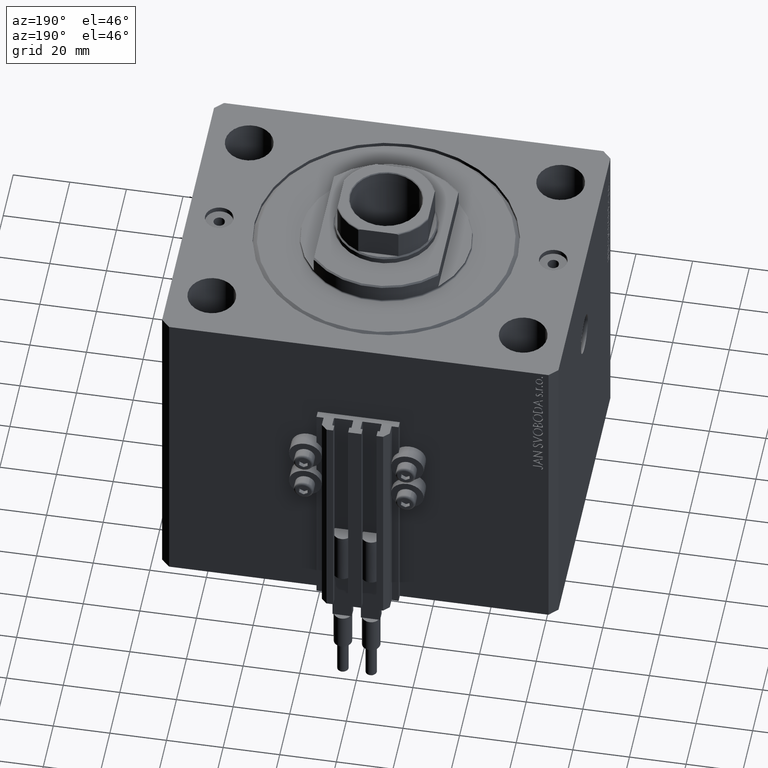
[diagram: clean part render]
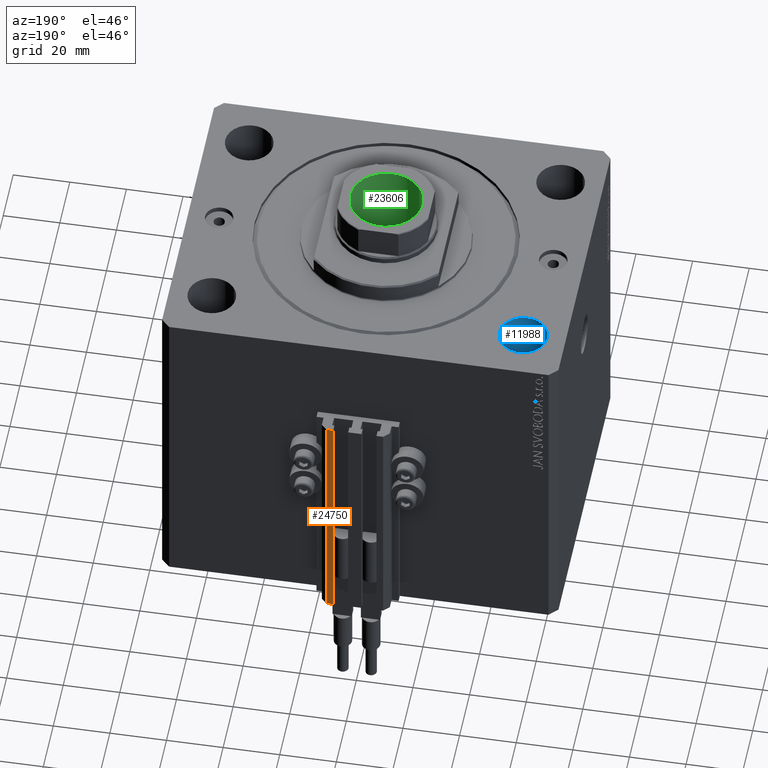
[diagram: same view with three faces highlighted in distinct colors, each labeled with its STEP entity id]
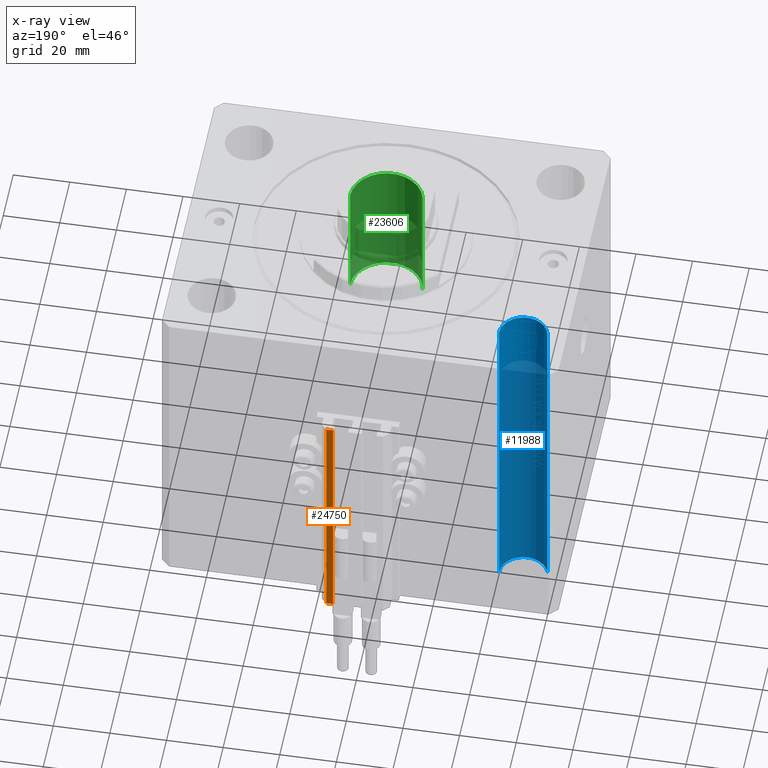
[diagram: x-ray of the same camera — body ghosted, the three highlighted faces saturated]
A machine part, auxiliary view with three faces highlighted in distinct colors.
The next image is the same camera in x-ray (body ghosted, the three faces saturated) — at least one of them is partly hidden behind the body in this view.
Their STEP definitions:

[orange] entity #24750 — the highlighted planar face has unit normal (0, 1, 0).
#622 = DIRECTION ( 'NONE',  ( -1.000000000000000000, 0.000000000000000000, 0.000000000000000000 ) ) ;
#1808 = DIRECTION ( 'NONE',  ( -1.000000000000000000, 0.000000000000000000, 0.000000000000000000 ) ) ;
#4230 = CARTESIAN_POINT ( 'NONE',  ( 7.649999999999998579, 63.00000000000002842, -120.0000000000000000 ) ) ;
#4419 = VERTEX_POINT ( 'NONE', #28476 ) ;
#4926 = VERTEX_POINT ( 'NONE', #4230 ) ;
#12050 = LINE ( 'NONE', #22234, #35100 ) ;
#14161 = ORIENTED_EDGE ( 'NONE', *, *, #45867, .F. ) ;
#15630 = EDGE_LOOP ( 'NONE', ( #29269, #14161, #30945, #40360 ) ) ;
#15709 = DIRECTION ( 'NONE',  ( 0.000000000000000000, 0.000000000000000000, 1.000000000000000000 ) ) ;
#16856 = LINE ( 'NONE', #27293, #19813 ) ;
#17538 = DIRECTION ( 'NONE',  ( 0.000000000000000000, 0.000000000000000000, 1.000000000000000000 ) ) ;
#17616 = LINE ( 'NONE', #47946, #29604 ) ;
#19654 = EDGE_CURVE ( 'NONE', #4419, #43121, #12050, .T. ) ;
#19813 = VECTOR ( 'NONE', #1808, 1000.000000000000000 ) ;
#22234 = CARTESIAN_POINT ( 'NONE',  ( 9.999999999999998224, 63.00000000000002842, -33.00000000000000000 ) ) ;
#24750 = ADVANCED_FACE ( 'NONE', ( #34158 ), #30032, .T. ) ;
#25761 = LINE ( 'NONE', #35738, #46481 ) ;
#27293 = CARTESIAN_POINT ( 'NONE',  ( 9.999999999999998224, 63.00000000000002842, -120.0000000000000000 ) ) ;
#28344 = EDGE_CURVE ( 'NONE', #37308, #4926, #16856, .T. ) ;
#28476 = CARTESIAN_POINT ( 'NONE',  ( 9.999999999999998224, 63.00000000000002842, -33.00000000000000000 ) ) ;
#29269 = ORIENTED_EDGE ( 'NONE', *, *, #19654, .F. ) ;
#29604 = VECTOR ( 'NONE', #36063, 1000.000000000000000 ) ;
#30032 = PLANE ( 'NONE',  #38320 ) ;
#30273 = DIRECTION ( 'NONE',  ( 0.000000000000000000, 1.000000000000000000, -0.000000000000000000 ) ) ;
#30945 = ORIENTED_EDGE ( 'NONE', *, *, #28344, .T. ) ;
#31736 = EDGE_CURVE ( 'NONE', #4926, #43121, #25761, .T. ) ;
#34158 = FACE_OUTER_BOUND ( 'NONE', #15630, .T. ) ;
#35100 = VECTOR ( 'NONE', #622, 1000.000000000000000 ) ;
#35738 = CARTESIAN_POINT ( 'NONE',  ( 7.649999999999998579, 63.00000000000002842, -120.0000000000000000 ) ) ;
#36063 = DIRECTION ( 'NONE',  ( 0.000000000000000000, 0.000000000000000000, 1.000000000000000000 ) ) ;
#36365 = CARTESIAN_POINT ( 'NONE',  ( 9.999999999999998224, 63.00000000000002842, -120.0000000000000000 ) ) ;
#37308 = VERTEX_POINT ( 'NONE', #36365 ) ;
#38320 = AXIS2_PLACEMENT_3D ( 'NONE', #41448, #30273, #15709 ) ;
#40360 = ORIENTED_EDGE ( 'NONE', *, *, #31736, .T. ) ;
#41448 = CARTESIAN_POINT ( 'NONE',  ( 9.999999999999998224, 63.00000000000002842, -120.0000000000000000 ) ) ;
#43121 = VERTEX_POINT ( 'NONE', #47617 ) ;
#45867 = EDGE_CURVE ( 'NONE', #37308, #4419, #17616, .T. ) ;
#46481 = VECTOR ( 'NONE', #17538, 1000.000000000000000 ) ;
#47617 = CARTESIAN_POINT ( 'NONE',  ( 7.649999999999998579, 63.00000000000002842, -33.00000000000000000 ) ) ;
#47946 = CARTESIAN_POINT ( 'NONE',  ( 9.999999999999998224, 63.00000000000002842, -120.0000000000000000 ) ) ;

[blue] entity #11988 — the highlighted cylindrical surface (edge-blend (fillet) strip) has radius 8.5 mm, axis along (0, 0, 1).
#805 = CARTESIAN_POINT ( 'NONE',  ( -63.50000000000000000, 37.50000000000000000, 0.000000000000000000 ) ) ;
#2249 = CARTESIAN_POINT ( 'NONE',  ( -46.50000000000000000, 37.50000000000000000, -120.0000000000000000 ) ) ;
#4224 = CARTESIAN_POINT ( 'NONE',  ( -46.50000000000000000, 37.50000000000000000, 0.000000000000000000 ) ) ;
#5417 = DIRECTION ( 'NONE',  ( 1.000000000000000000, 0.000000000000000000, 0.000000000000000000 ) ) ;
#6297 = CYLINDRICAL_SURFACE ( 'NONE', #30314, 8.500000000000000000 ) ;
#6958 = VERTEX_POINT ( 'NONE', #805 ) ;
#7603 = AXIS2_PLACEMENT_3D ( 'NONE', #28225, #45969, #5417 ) ;
#7823 = VERTEX_POINT ( 'NONE', #4224 ) ;
#9454 = ORIENTED_EDGE ( 'NONE', *, *, #19770, .T. ) ;
#9710 = CARTESIAN_POINT ( 'NONE',  ( -55.00000000000000000, 37.50000000000000000, -144.0416305603426395 ) ) ;
#10239 = CARTESIAN_POINT ( 'NONE',  ( -63.50000000000000000, 37.50000000000000000, -120.0000000000000000 ) ) ;
#10985 = ORIENTED_EDGE ( 'NONE', *, *, #45214, .T. ) ;
#11988 = ADVANCED_FACE ( 'NONE', ( #39553 ), #6297, .F. ) ;
#13248 = DIRECTION ( 'NONE',  ( -0.000000000000000000, -0.000000000000000000, 1.000000000000000000 ) ) ;
#14108 = ORIENTED_EDGE ( 'NONE', *, *, #31672, .T. ) ;
#14800 = VERTEX_POINT ( 'NONE', #2249 ) ;
#16779 = DIRECTION ( 'NONE',  ( 1.000000000000000000, 0.000000000000000000, 0.000000000000000000 ) ) ;
#17497 = CARTESIAN_POINT ( 'NONE',  ( -46.50000000000000000, 37.50000000000000000, -144.0416305603426395 ) ) ;
#19770 = EDGE_CURVE ( 'NONE', #25614, #6958, #32891, .T. ) ;
#20416 = CARTESIAN_POINT ( 'NONE',  ( -55.00000000000000000, 37.50000000000000000, 0.000000000000000000 ) ) ;
#25614 = VERTEX_POINT ( 'NONE', #10239 ) ;
#25789 = AXIS2_PLACEMENT_3D ( 'NONE', #20416, #35219, #16779 ) ;
#28225 = CARTESIAN_POINT ( 'NONE',  ( -55.00000000000000000, 37.50000000000000000, -120.0000000000000000 ) ) ;
#30314 = AXIS2_PLACEMENT_3D ( 'NONE', #9710, #42245, #34704 ) ;
#31672 = EDGE_CURVE ( 'NONE', #14800, #25614, #34741, .T. ) ;
#32303 = DIRECTION ( 'NONE',  ( -0.000000000000000000, -0.000000000000000000, 1.000000000000000000 ) ) ;
#32412 = CARTESIAN_POINT ( 'NONE',  ( -63.50000000000000000, 37.50000000000000000, -144.0416305603426395 ) ) ;
#32749 = VECTOR ( 'NONE', #13248, 1000.000000000000000 ) ;
#32891 = LINE ( 'NONE', #32412, #32749 ) ;
#34704 = DIRECTION ( 'NONE',  ( 1.000000000000000000, 0.000000000000000000, 0.000000000000000000 ) ) ;
#34741 = CIRCLE ( 'NONE', #7603, 8.500000000000000000 ) ;
#35219 = DIRECTION ( 'NONE',  ( 0.000000000000000000, 0.000000000000000000, 1.000000000000000000 ) ) ;
#35231 = EDGE_CURVE ( 'NONE', #14800, #7823, #43706, .T. ) ;
#39009 = ORIENTED_EDGE ( 'NONE', *, *, #35231, .F. ) ;
#39553 = FACE_OUTER_BOUND ( 'NONE', #40831, .T. ) ;
#40831 = EDGE_LOOP ( 'NONE', ( #14108, #9454, #10985, #39009 ) ) ;
#42245 = DIRECTION ( 'NONE',  ( -0.000000000000000000, -0.000000000000000000, 1.000000000000000000 ) ) ;
#43706 = LINE ( 'NONE', #17497, #44133 ) ;
#44133 = VECTOR ( 'NONE', #32303, 1000.000000000000000 ) ;
#45214 = EDGE_CURVE ( 'NONE', #6958, #7823, #46750, .T. ) ;
#45969 = DIRECTION ( 'NONE',  ( -0.000000000000000000, -0.000000000000000000, -1.000000000000000000 ) ) ;
#46750 = CIRCLE ( 'NONE', #25789, 8.500000000000000000 ) ;

[green] entity #23606 — the highlighted cylindrical surface (partial cylindrical patch) has radius 12.75 mm, axis along (0, 0, 1).
#3302 = VECTOR ( 'NONE', #13216, 1000.000000000000000 ) ;
#3687 = ORIENTED_EDGE ( 'NONE', *, *, #41861, .T. ) ;
#5612 = LINE ( 'NONE', #28178, #6417 ) ;
#5926 = CARTESIAN_POINT ( 'NONE',  ( 0.000000000000000000, 0.000000000000000000, 114.6999999999999602 ) ) ;
#6226 = CARTESIAN_POINT ( 'NONE',  ( -12.74999999999999112, 1.561424668912874125E-15, 70.00000000000000000 ) ) ;
#6417 = VECTOR ( 'NONE', #20410, 1000.000000000000000 ) ;
#9328 = CARTESIAN_POINT ( 'NONE',  ( -12.74999999999999467, 1.561424668912874519E-15, 114.6999999999999602 ) ) ;
#10646 = VERTEX_POINT ( 'NONE', #37880 ) ;
#11762 = CIRCLE ( 'NONE', #22600, 12.74999999999999467 ) ;
#13216 = DIRECTION ( 'NONE',  ( -0.000000000000000000, -0.000000000000000000, 1.000000000000000000 ) ) ;
#13689 = CARTESIAN_POINT ( 'NONE',  ( 12.74999999999999467, 0.000000000000000000, 115.0000000000000000 ) ) ;
#16196 = CARTESIAN_POINT ( 'NONE',  ( 0.000000000000000000, 0.000000000000000000, 70.00000000000000000 ) ) ;
#16444 = DIRECTION ( 'NONE',  ( -0.000000000000000000, -0.000000000000000000, 1.000000000000000000 ) ) ;
#17367 = AXIS2_PLACEMENT_3D ( 'NONE', #16196, #16444, #42416 ) ;
#19755 = VERTEX_POINT ( 'NONE', #31701 ) ;
#19897 = DIRECTION ( 'NONE',  ( 1.000000000000000000, 0.000000000000000000, 0.000000000000000000 ) ) ;
#20379 = EDGE_CURVE ( 'NONE', #37486, #47138, #5612, .T. ) ;
#20410 = DIRECTION ( 'NONE',  ( -0.000000000000000000, -0.000000000000000000, 1.000000000000000000 ) ) ;
#22156 = CYLINDRICAL_SURFACE ( 'NONE', #25868, 12.74999999999999467 ) ;
#22600 = AXIS2_PLACEMENT_3D ( 'NONE', #5926, #23410, #35526 ) ;
#23266 = EDGE_CURVE ( 'NONE', #37486, #10646, #29759, .T. ) ;
#23410 = DIRECTION ( 'NONE',  ( 0.000000000000000000, 0.000000000000000000, 1.000000000000000000 ) ) ;
#23606 = ADVANCED_FACE ( 'NONE', ( #36732 ), #22156, .F. ) ;
#25868 = AXIS2_PLACEMENT_3D ( 'NONE', #33090, #45639, #19897 ) ;
#28178 = CARTESIAN_POINT ( 'NONE',  ( -12.74999999999999467, 1.561424668912874519E-15, 115.0000000000000000 ) ) ;
#28338 = ORIENTED_EDGE ( 'NONE', *, *, #47907, .F. ) ;
#29759 = CIRCLE ( 'NONE', #17367, 12.74999999999999112 ) ;
#30528 = ORIENTED_EDGE ( 'NONE', *, *, #23266, .F. ) ;
#31701 = CARTESIAN_POINT ( 'NONE',  ( 12.74999999999999467, 0.000000000000000000, 114.6999999999999602 ) ) ;
#33090 = CARTESIAN_POINT ( 'NONE',  ( 0.000000000000000000, 0.000000000000000000, 115.0000000000000000 ) ) ;
#35526 = DIRECTION ( 'NONE',  ( 1.000000000000000000, 0.000000000000000000, 0.000000000000000000 ) ) ;
#36732 = FACE_OUTER_BOUND ( 'NONE', #38340, .T. ) ;
#37486 = VERTEX_POINT ( 'NONE', #6226 ) ;
#37745 = ORIENTED_EDGE ( 'NONE', *, *, #20379, .T. ) ;
#37880 = CARTESIAN_POINT ( 'NONE',  ( 12.74999999999999112, 0.000000000000000000, 70.00000000000000000 ) ) ;
#38340 = EDGE_LOOP ( 'NONE', ( #30528, #37745, #3687, #28338 ) ) ;
#41861 = EDGE_CURVE ( 'NONE', #47138, #19755, #11762, .T. ) ;
#42416 = DIRECTION ( 'NONE',  ( 1.000000000000000000, 0.000000000000000000, 0.000000000000000000 ) ) ;
#45639 = DIRECTION ( 'NONE',  ( -0.000000000000000000, -0.000000000000000000, 1.000000000000000000 ) ) ;
#46003 = LINE ( 'NONE', #13689, #3302 ) ;
#47138 = VERTEX_POINT ( 'NONE', #9328 ) ;
#47907 = EDGE_CURVE ( 'NONE', #10646, #19755, #46003, .T. ) ;